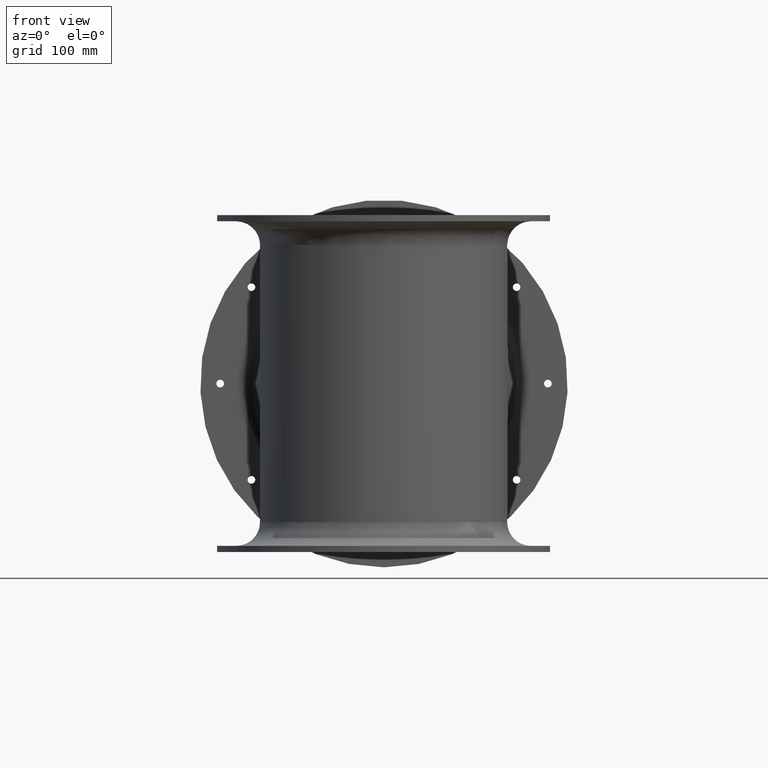
[diagram: clean part render]
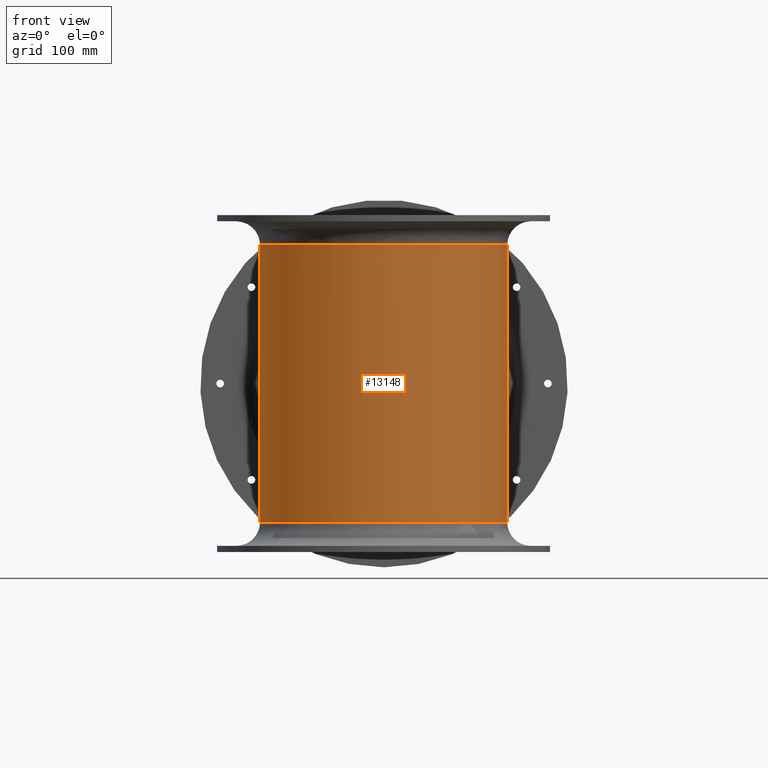
[diagram: same view with one face highlighted and labeled with its STEP entity id]
A machine part, front view. The second image highlights one B-rep face of the part: STEP entity #13148.
In plain terms, the highlighted cylindrical surface (bore or boss wall) has radius 202.5 mm, axis along (-0, 0, -1).
Its self-contained STEP definition (entity closure, byte-faithful):
#752=CYLINDRICAL_SURFACE('',#14254,202.5);
#822=FACE_BOUND('',#3325,.T.);
#823=FACE_BOUND('',#3326,.T.);
#1643=B_SPLINE_CURVE_WITH_KNOTS('',3,(#54948,#54949,#54950,#54951,#54952,
#54953,#54954,#54955,#54956,#54957,#54958,#54959,#54960,#54961,#54962,#54963,
#54964,#54965,#54966,#54967,#54968,#54969,#54970,#54971,#54972,#54973,#54974,
#54975,#54976,#54977,#54978,#54979,#54980,#54981,#54982,#54983,#54984,#54985,
#54986,#54987,#54988,#54989,#54990,#54991,#54992,#54993,#54994,#54995,#54996,
#54997,#54998,#54999,#55000,#55001,#55002,#55003,#55004,#55005,#55006,#55007,
#55008,#55009,#55010,#55011,#55012,#55013,#55014,#55015,#55016,#55017,#55018,
#55019,#55020,#55021,#55022,#55023,#55024,#55025,#55026,#55027,#55028,#55029,
#55030,#55031,#55032,#55033,#55034,#55035,#55036,#55037,#55038,#55039,#55040,
#55041,#55042,#55043,#55044,#55045,#55046,#55047,#55048,#55049,#55050,#55051,
#55052,#55053,#55054,#55055,#55056,#55057,#55058,#55059,#55060,#55061,#55062,
#55063,#55064,#55065,#55066,#55067,#55068,#55069,#55070,#55071,#55072,#55073,
#55074,#55075,#55076,#55077,#55078,#55079,#55080,#55081,#55082,#55083,#55084,
#55085,#55086,#55087,#55088,#55089,#55090,#55091,#55092,#55093,#55094,#55095,
#55096,#55097,#55098,#55099,#55100,#55101,#55102,#55103,#55104,#55105,#55106,
#55107,#55108,#55109,#55110,#55111,#55112,#55113,#55114,#55115,#55116,#55117,
#55118,#55119,#55120,#55121,#55122,#55123,#55124,#55125,#55126,#55127,#55128,
#55129,#55130,#55131,#55132,#55133,#55134,#55135,#55136,#55137,#55138,#55139,
#55140,#55141,#55142,#55143,#55144,#55145,#55146,#55147,#55148,#55149,#55150,
#55151,#55152,#55153,#55154,#55155,#55156,#55157,#55158,#55159,#55160,#55161,
#55162,#55163,#55164,#55165,#55166,#55167,#55168,#55169,#55170,#55171,#55172,
#55173,#55174,#55175,#55176,#55177,#55178,#55179,#55180,#55181,#55182,#55183,
#55184,#55185,#55186,#55187,#55188,#55189,#55190,#55191,#55192,#55193,#55194,
#55195,#55196,#55197,#55198,#55199,#55200,#55201,#55202,#55203,#55204,#55205,
#55206,#55207,#55208,#55209,#55210,#55211,#55212,#55213,#55214,#55215,#55216,
#55217,#55218,#55219,#55220,#55221,#55222,#55223,#55224,#55225,#55226,#55227,
#55228,#55229,#55230,#55231,#55232,#55233,#55234,#55235,#55236,#55237,#55238,
#55239,#55240,#55241,#55242,#55243,#55244,#55245,#55246,#55247,#55248,#55249,
#55250,#55251,#55252,#55253,#55254,#55255,#55256,#55257,#55258,#55259,#55260,
#55261,#55262,#55263,#55264,#55265,#55266,#55267,#55268,#55269,#55270,#55271,
#55272,#55273,#55274,#55275,#55276,#55277,#55278,#55279,#55280,#55281,#55282,
#55283,#55284,#55285,#55286,#55287,#55288,#55289,#55290,#55291,#55292,#55293,
#55294,#55295,#55296,#55297,#55298,#55299,#55300,#55301,#55302,#55303,#55304,
#55305,#55306,#55307,#55308,#55309,#55310,#55311,#55312,#55313,#55314,#55315,
#55316,#55317,#55318,#55319,#55320,#55321,#55322,#55323,#55324,#55325,#55326,
#55327,#55328,#55329,#55330,#55331,#55332),.UNSPECIFIED.,.T.,.F.,(4,3,3,
3,3,3,3,3,3,3,3,3,3,3,3,3,3,3,3,3,3,3,3,3,3,3,3,3,3,3,3,3,3,3,3,3,3,3,3,
3,3,3,3,3,3,3,3,3,3,3,3,3,3,3,3,3,3,3,3,3,3,3,3,3,3,3,3,3,3,3,3,3,3,3,3,
3,3,3,3,3,3,3,3,3,3,3,3,3,3,3,3,3,3,3,3,3,3,3,3,3,3,3,3,3,3,3,3,3,3,3,3,
3,3,3,3,3,3,3,3,3,3,3,3,3,3,3,3,3,4),(-160.342906912036,-160.081610975274,
-159.806046325259,-159.70745696218,-159.627059865564,-158.911603294999,
-158.196065782003,-157.71663035812,-157.65844358391,-157.479094196927,-156.045520752024,
-154.613641021606,-151.752290572736,-149.810930225153,-148.890155718497,
-147.45892251172,-145.816008437067,-145.668549316929,-144.594002031974,
-143.161990087913,-137.436836950914,-136.959595278468,-136.665929451944,
-136.1641162625,-134.891639086557,-130.162442041686,-129.800813206733,-129.562154742946,
-127.892585473663,-126.461189080719,-126.039837570184,-125.983600632645,
-122.695283499125,-122.165629504571,-120.625039987267,-118.692210297802,
-118.34832113825,-116.439800674157,-116.069722114912,-114.530009733055,
-112.622185500934,-110.713585221901,-110.068461128252,-108.803075963811,
-106.894432287388,-103.077776392632,-102.68580357898,-101.884102439985,
-101.168158906038,-99.2597980532162,-95.4440953012599,-93.5352335895442,
-91.6495833604302,-91.6246814189812,-87.805743866731,-85.897824174083,-84.5253022285759,
-83.9893061310752,-83.7009996830874,-82.7160553985728,-82.2390318148518,
-81.7454708848339,-81.4439640252966,-81.025646101809,-80.8076057675436,
-80.531767047028,-80.287961013862,-80.1716033146539,-80.0854849546987,-79.8375311491397,
-79.5349982732622,-79.3190264793224,-78.8993080078128,-78.0180719655853,
-77.6264146846165,-76.3537563673086,-76.2634474649733,-75.636812081051,
-75.3979507631704,-74.4430331145185,-72.5348999443966,-69.6731482481115,
-68.9386351468239,-68.7183700297651,-64.9011242767384,-61.0844988520505,
-58.7703045195937,-57.2641197006221,-54.4022140550659,-53.4482350096057,
-51.6487655418366,-50.9021158366082,-48.3580124577464,-46.7305625843402,
-45.8116971581924,-43.9036909448839,-42.9208168368777,-41.9944043869412,
-40.7550662017537,-38.8470287143703,-38.1767120407175,-37.2227430335197,
-36.4198872014549,-34.3586547744628,-32.4507825263865,-31.5152553461049,
-30.5409726766878,-25.4522695863814,-24.2770105557074,-24.1785704467151,
-22.9049318856175,-17.1807867851427,-15.7491697433524,-14.2375590226819,
-11.4519378130212,-8.58974760449831,-7.63804363807765,-5.72603196125493,
-4.29487985096732,-3.23889387569538,-2.86323948060928,-2.77950123683371,
-1.47209831865792,-1.43167218082337,-1.27598788093155,-0.715991356617883,
-0.534179025333353,-0.212204773589796,0.),.UNSPECIFIED.);
#2444=FACE_OUTER_BOUND('',#3324,.T.);
#3324=EDGE_LOOP('',(#11356));
#3325=EDGE_LOOP('',(#11357));
#3326=EDGE_LOOP('',(#11358));
#4763=CIRCLE('',#14255,202.5);
#4764=CIRCLE('',#14256,202.5);
#5865=VERTEX_POINT('',#54858);
#5868=VERTEX_POINT('',#55337);
#5869=VERTEX_POINT('',#55339);
#7716=EDGE_CURVE('',#5865,#5865,#1643,.T.);
#7718=EDGE_CURVE('',#5868,#5868,#4763,.T.);
#7719=EDGE_CURVE('',#5869,#5869,#4764,.T.);
#11356=ORIENTED_EDGE('',*,*,#7718,.F.);
#11357=ORIENTED_EDGE('',*,*,#7719,.T.);
#11358=ORIENTED_EDGE('',*,*,#7716,.F.);
#13148=ADVANCED_FACE('',(#2444,#822,#823),#752,.T.);
#14254=AXIS2_PLACEMENT_3D('',#55336,#16807,#16808);
#14255=AXIS2_PLACEMENT_3D('',#55338,#16809,#16810);
#14256=AXIS2_PLACEMENT_3D('',#55340,#16811,#16812);
#16807=DIRECTION('center_axis',(-3.12250225675821E-16,2.4995738599939E-16,
-1.));
#16808=DIRECTION('ref_axis',(-1.,-4.17516537684347E-17,3.12250225675821E-16));
#16809=DIRECTION('center_axis',(-3.12250225675821E-16,2.4995738599939E-16,
-1.));
#16810=DIRECTION('ref_axis',(-1.,-4.17516537684347E-17,3.12250225675821E-16));
#16811=DIRECTION('center_axis',(-3.12250225675821E-16,2.4995738599939E-16,
-1.));
#16812=DIRECTION('ref_axis',(-1.,-4.17516537684347E-17,3.12250225675821E-16));
#54858=CARTESIAN_POINT('',(206.153196348046,-87.0686473666675,-0.0114437788855521));
#54948=CARTESIAN_POINT('Ctrl Pts',(206.153196348016,-87.0686473660619,-0.0114437792734989));
#54949=CARTESIAN_POINT('Ctrl Pts',(206.153196348004,-87.068647365811,-0.905316120626415));
#54950=CARTESIAN_POINT('Ctrl Pts',(206.150641521748,-87.0161968848526,-1.80011812933818));
#54951=CARTESIAN_POINT('Ctrl Pts',(206.145550425563,-86.9140453044336,-2.68735471217343));
#54952=CARTESIAN_POINT('Ctrl Pts',(206.140181317432,-86.8063154833905,-3.62304105103956));
#54953=CARTESIAN_POINT('Ctrl Pts',(206.132034910705,-86.6442851690262,-4.55357712066154));
#54954=CARTESIAN_POINT('Ctrl Pts',(206.12106942661,-86.4342871383792,-5.47058941575714));
#54955=CARTESIAN_POINT('Ctrl Pts',(206.11714628156,-86.3591556870553,-5.79867089537995));
#54956=CARTESIAN_POINT('Ctrl Pts',(206.112860928876,-86.2778919594474,-6.12502436562616));
#54957=CARTESIAN_POINT('Ctrl Pts',(206.108228444408,-86.1911780894009,-6.44943962786619));
#54958=CARTESIAN_POINT('Ctrl Pts',(206.104450772154,-86.120465152727,-6.713991952454));
#54959=CARTESIAN_POINT('Ctrl Pts',(206.10043905172,-86.0460680239785,-6.97736107391751));
#54960=CARTESIAN_POINT('Ctrl Pts',(206.096200084156,-85.9683286718561,-7.23946241622428));
#54961=CARTESIAN_POINT('Ctrl Pts',(206.058477363766,-85.2765234623592,-9.5719114150066));
#54962=CARTESIAN_POINT('Ctrl Pts',(206.002582524451,-84.3198266200034,-11.8038612803584));
#54963=CARTESIAN_POINT('Ctrl Pts',(205.92748539864,-83.2184482316315,-13.9711063214506));
#54964=CARTESIAN_POINT('Ctrl Pts',(205.852379776795,-82.1169452399681,-16.1385965515427));
#54965=CARTESIAN_POINT('Ctrl Pts',(205.757974345024,-80.8708699787625,-18.2413977841035));
#54966=CARTESIAN_POINT('Ctrl Pts',(205.644928684035,-79.5624942379679,-20.2819700481717));
#54967=CARTESIAN_POINT('Ctrl Pts',(205.569184095652,-78.6858362480043,-21.6492255877058));
#54968=CARTESIAN_POINT('Ctrl Pts',(205.485217206077,-77.7812057130045,-22.9885593503663));
#54969=CARTESIAN_POINT('Ctrl Pts',(205.393228880498,-76.8605740822932,-24.3019416808103));
#54970=CARTESIAN_POINT('Ctrl Pts',(205.38206469933,-76.7488414439486,-24.4613405848239));
#54971=CARTESIAN_POINT('Ctrl Pts',(205.370780832487,-76.6368504828469,-24.6203856403321));
#54972=CARTESIAN_POINT('Ctrl Pts',(205.359378005152,-76.5246213179947,-24.779080966894));
#54973=CARTESIAN_POINT('Ctrl Pts',(205.324231013068,-76.1786967983524,-25.2682283706251));
#54974=CARTESIAN_POINT('Ctrl Pts',(205.287954146403,-75.8305092529739,-25.7540529681158));
#54975=CARTESIAN_POINT('Ctrl Pts',(205.250500103504,-75.4799674555695,-26.2381044776288));
#54976=CARTESIAN_POINT('Ctrl Pts',(204.951122881163,-72.6780208164489,-30.1072194028214));
#54977=CARTESIAN_POINT('Ctrl Pts',(204.575325772107,-69.7256786758896,-33.8630043060055));
#54978=CARTESIAN_POINT('Ctrl Pts',(204.120236801677,-66.716211780728,-37.5593616210022));
#54979=CARTESIAN_POINT('Ctrl Pts',(203.665685502186,-63.7103004604064,-41.2513518253022));
#54980=CARTESIAN_POINT('Ctrl Pts',(203.132877729053,-60.6473455439024,-44.8840835034092));
#54981=CARTESIAN_POINT('Ctrl Pts',(202.519418616028,-57.5576238800317,-48.4859196926945));
#54982=CARTESIAN_POINT('Ctrl Pts',(201.293532481092,-51.3833787377965,-55.6835322980198));
#54983=CARTESIAN_POINT('Ctrl Pts',(199.744665032937,-45.1023736273486,-62.7577588627047));
#54984=CARTESIAN_POINT('Ctrl Pts',(197.862110861805,-38.824954086243,-69.7467996741985));
#54985=CARTESIAN_POINT('Ctrl Pts',(196.584841234991,-34.5658695735234,-74.4887028215157));
#54986=CARTESIAN_POINT('Ctrl Pts',(195.154892784623,-30.3081899753721,-79.19141384502));
#54987=CARTESIAN_POINT('Ctrl Pts',(193.570195413365,-26.0701797009413,-83.846923820961));
#54988=CARTESIAN_POINT('Ctrl Pts',(192.81858382202,-24.0601191655519,-86.0550017322414));
#54989=CARTESIAN_POINT('Ctrl Pts',(192.031853734637,-22.0535686519736,-88.2536130032019));
#54990=CARTESIAN_POINT('Ctrl Pts',(191.209910066484,-20.0525498442842,-90.4417313203539));
#54991=CARTESIAN_POINT('Ctrl Pts',(189.932297509386,-16.9422068186639,-93.8428980264504));
#54992=CARTESIAN_POINT('Ctrl Pts',(188.56950243704,-13.8452698022533,-97.2187101162836));
#54993=CARTESIAN_POINT('Ctrl Pts',(187.12388414568,-10.773190348761,-100.560695656225));
#54994=CARTESIAN_POINT('Ctrl Pts',(185.464457417592,-7.24674717465236,-104.396964305428));
#54995=CARTESIAN_POINT('Ctrl Pts',(183.696220778413,-3.75289957296477,-108.188663863943));
#54996=CARTESIAN_POINT('Ctrl Pts',(181.813753566408,-0.289525822577126,
-111.939837415986));
#54997=CARTESIAN_POINT('Ctrl Pts',(181.644793446671,0.0213279547581458,
-112.276522553697));
#54998=CARTESIAN_POINT('Ctrl Pts',(181.474893048155,0.331970037897555,-112.61292210773));
#54999=CARTESIAN_POINT('Ctrl Pts',(181.304046644655,0.642402121147132,-112.949040054855));
#55000=CARTESIAN_POINT('Ctrl Pts',(180.059074215324,2.90454739846474,-115.398360430349));
#55001=CARTESIAN_POINT('Ctrl Pts',(178.763916391559,5.15556659020527,-117.832725912591));
#55002=CARTESIAN_POINT('Ctrl Pts',(177.415508715764,7.39689776956975,-120.254292268482));
#55003=CARTESIAN_POINT('Ctrl Pts',(175.618532515427,10.3838421920106,-123.481429867287));
#55004=CARTESIAN_POINT('Ctrl Pts',(173.726825398722,13.3534889365441,-126.685838813271));
#55005=CARTESIAN_POINT('Ctrl Pts',(171.740901713367,16.2957363428828,-129.857650268493));
#55006=CARTESIAN_POINT('Ctrl Pts',(163.801221276895,28.0587785703541,-142.53848465549));
#55007=CARTESIAN_POINT('Ctrl Pts',(154.354021009535,39.3834051224526,-154.697622047659));
#55008=CARTESIAN_POINT('Ctrl Pts',(143.359397447823,49.8270231142423,-165.897138230604));
#55009=CARTESIAN_POINT('Ctrl Pts',(142.442899249269,50.6975901711438,-166.830716024217));
#55010=CARTESIAN_POINT('Ctrl Pts',(141.515657184101,51.5620368507283,-167.757631716881));
#55011=CARTESIAN_POINT('Ctrl Pts',(140.577775858483,52.4199944001655,-168.677409279932));
#55012=CARTESIAN_POINT('Ctrl Pts',(140.000660089741,52.9479298832235,-169.243385081851));
#55013=CARTESIAN_POINT('Ctrl Pts',(139.419516752431,53.4734094985527,-169.806658111091));
#55014=CARTESIAN_POINT('Ctrl Pts',(138.834122042062,53.9965666753642,-170.367380414359));
#55015=CARTESIAN_POINT('Ctrl Pts',(137.833805491204,54.8905323593636,-171.3255370059));
#55016=CARTESIAN_POINT('Ctrl Pts',(136.820904945608,55.7778775651086,-172.276402108435));
#55017=CARTESIAN_POINT('Ctrl Pts',(135.794236244161,56.6591825928534,-173.220723179792));
#55018=CARTESIAN_POINT('Ctrl Pts',(133.190852121686,58.8939595107201,-175.615293580375));
#55019=CARTESIAN_POINT('Ctrl Pts',(130.498826304209,61.0897423349381,-177.967784282664));
#55020=CARTESIAN_POINT('Ctrl Pts',(127.723251138706,63.2347416615136,-180.264945430994));
#55021=CARTESIAN_POINT('Ctrl Pts',(117.407748339384,71.20669170374,-188.802409143239));
#55022=CARTESIAN_POINT('Ctrl Pts',(105.934004911645,78.4722767244183,-196.574523778074));
#55023=CARTESIAN_POINT('Ctrl Pts',(93.4496549177915,84.6279896735846,-203.156634313988));
#55024=CARTESIAN_POINT('Ctrl Pts',(92.4950106302756,85.0987002997207,-203.659950403813));
#55025=CARTESIAN_POINT('Ctrl Pts',(91.5341359029034,85.5631259870001,-204.156487976119));
#55026=CARTESIAN_POINT('Ctrl Pts',(90.5671284798368,86.0210725915283,-204.646026797903));
#55027=CARTESIAN_POINT('Ctrl Pts',(89.9289478820725,86.3232963706335,-204.969099993064));
#55028=CARTESIAN_POINT('Ctrl Pts',(89.2880970473115,86.6227001000465,-205.289124961684));
#55029=CARTESIAN_POINT('Ctrl Pts',(88.6441017736712,86.9194540674916,-205.606320194511));
#55030=CARTESIAN_POINT('Ctrl Pts',(84.1389411295667,88.9954387056375,-207.825304615549));
#55031=CARTESIAN_POINT('Ctrl Pts',(79.4794599148953,90.9407880353013,-209.905720257906));
#55032=CARTESIAN_POINT('Ctrl Pts',(74.7065649851968,92.7222322453168,-211.809608571909));
#55033=CARTESIAN_POINT('Ctrl Pts',(70.6145487316833,94.2495440276802,-213.441897159973));
#55034=CARTESIAN_POINT('Ctrl Pts',(66.4392673986459,95.6568860152092,-214.944435612847));
#55035=CARTESIAN_POINT('Ctrl Pts',(62.1943219458807,96.9329896029342,-216.30840125423));
#55036=CARTESIAN_POINT('Ctrl Pts',(60.9447629924859,97.3086285083676,-216.70990358171));
#55037=CARTESIAN_POINT('Ctrl Pts',(59.6891818205151,97.6729123263901,-217.099404062175));
#55038=CARTESIAN_POINT('Ctrl Pts',(58.4272659404547,98.0257647266432,-217.4765007527));
#55039=CARTESIAN_POINT('Ctrl Pts',(58.2588405693527,98.0728592258851,-217.526831088538));
#55040=CARTESIAN_POINT('Ctrl Pts',(58.090284840386,98.1197549307321,-217.576946782485));
#55041=CARTESIAN_POINT('Ctrl Pts',(57.9215980579332,98.1664514488618,-217.626846675502));
#55042=CARTESIAN_POINT('Ctrl Pts',(48.0580517623197,100.896915932915,-220.54462065734));
#55043=CARTESIAN_POINT('Ctrl Pts',(37.7417989788662,102.93489748153,-222.720783290649));
#55044=CARTESIAN_POINT('Ctrl Pts',(27.2881315967816,104.150578786694,-224.020055035181));
#55045=CARTESIAN_POINT('Ctrl Pts',(25.6043442788795,104.346390332005,-224.229330613405));
#55046=CARTESIAN_POINT('Ctrl Pts',(23.9145908683526,104.521456949889,-224.416600618623));
#55047=CARTESIAN_POINT('Ctrl Pts',(22.2204635966756,104.675387193813,-224.581127189446));
#55048=CARTESIAN_POINT('Ctrl Pts',(17.2928037610852,105.123119718489,-225.059680948946));
#55049=CARTESIAN_POINT('Ctrl Pts',(12.3279240131953,105.391402658754,-225.345465848936));
#55050=CARTESIAN_POINT('Ctrl Pts',(7.36558214520845,105.47642447133,-225.435458799575));
#55051=CARTESIAN_POINT('Ctrl Pts',(1.13980845014759,105.583093172988,-225.548364310669));
#55052=CARTESIAN_POINT('Ctrl Pts',(-5.10902210767061,105.401083008606,-225.355538617146));
#55053=CARTESIAN_POINT('Ctrl Pts',(-11.3014733645517,104.935012040741,-224.857999133888));
#55054=CARTESIAN_POINT('Ctrl Pts',(-12.4032346164116,104.852088669736,-224.769476882976));
#55055=CARTESIAN_POINT('Ctrl Pts',(-13.5041361607491,104.760160321714,-224.671345841264));
#55056=CARTESIAN_POINT('Ctrl Pts',(-14.6037983327197,104.659273405854,-224.563589081918));
#55057=CARTESIAN_POINT('Ctrl Pts',(-20.7067175451989,104.099369907506,-223.965559238161));
#55058=CARTESIAN_POINT('Ctrl Pts',(-26.7714053692507,103.261944987581,-223.070458142706));
#55059=CARTESIAN_POINT('Ctrl Pts',(-32.7265121647376,102.166877713755,-221.900951880246));
#55060=CARTESIAN_POINT('Ctrl Pts',(-33.8812586736129,101.954534735726,-221.674174541054));
#55061=CARTESIAN_POINT('Ctrl Pts',(-35.0318929705042,101.732564857561,-221.43710109791));
#55062=CARTESIAN_POINT('Ctrl Pts',(-36.1782096655496,101.501131326167,-221.189876559164));
#55063=CARTESIAN_POINT('Ctrl Pts',(-40.9474619358984,100.538251783535,-220.161298507568));
#55064=CARTESIAN_POINT('Ctrl Pts',(-45.6555027603739,99.4088363593695,-218.954818712613));
#55065=CARTESIAN_POINT('Ctrl Pts',(-50.2942288005858,98.1204825768415,-217.577991722429));
#55066=CARTESIAN_POINT('Ctrl Pts',(-56.0419736716247,96.5241113358121,-215.871995247851));
#55067=CARTESIAN_POINT('Ctrl Pts',(-61.6828746770672,94.6823113414487,-213.904421632676));
#55068=CARTESIAN_POINT('Ctrl Pts',(-67.156652410013,92.6312667838919,-211.712422687221));
#55069=CARTESIAN_POINT('Ctrl Pts',(-72.632656715111,90.5793879215976,-209.519532100919));
#55070=CARTESIAN_POINT('Ctrl Pts',(-77.9417120499574,88.3187664271895,-207.102074964479));
#55071=CARTESIAN_POINT('Ctrl Pts',(-83.0525478463497,85.88888880302,-204.50430052903));
#55072=CARTESIAN_POINT('Ctrl Pts',(-84.7800564017839,85.067568269229,-203.626229360026));
#55073=CARTESIAN_POINT('Ctrl Pts',(-86.4849590332371,84.2269991913814,-202.72756460526));
#55074=CARTESIAN_POINT('Ctrl Pts',(-88.1682493642743,83.3677708112802,-201.808775209416));
#55075=CARTESIAN_POINT('Ctrl Pts',(-91.4699561727967,81.6824286333163,-200.006606475999));
#55076=CARTESIAN_POINT('Ctrl Pts',(-94.6932741466642,79.9230080960321,-198.124522187547));
#55077=CARTESIAN_POINT('Ctrl Pts',(-97.8449094519738,78.0916050128608,-196.165213216635));
#55078=CARTESIAN_POINT('Ctrl Pts',(-102.598678474174,75.3292082249855,-193.209889586662));
#55079=CARTESIAN_POINT('Ctrl Pts',(-107.188890583494,72.4023499771213,-190.07883657693));
#55080=CARTESIAN_POINT('Ctrl Pts',(-111.597557972564,69.3412082003325,-186.802427475486));
#55081=CARTESIAN_POINT('Ctrl Pts',(-120.413434181604,63.2199373987737,-180.250693243931));
#55082=CARTESIAN_POINT('Ctrl Pts',(-128.502194773675,56.5603073022296,-173.117459789364));
#55083=CARTESIAN_POINT('Ctrl Pts',(-135.815331781768,49.5900158951586,-165.643392092239));
#55084=CARTESIAN_POINT('Ctrl Pts',(-136.566395269996,48.8741628525637,-164.875800927238));
#55085=CARTESIAN_POINT('Ctrl Pts',(-137.309310757601,48.1550626187712,-164.104618556805));
#55086=CARTESIAN_POINT('Ctrl Pts',(-138.044425130661,47.4325989402885,-163.329710314067));
#55087=CARTESIAN_POINT('Ctrl Pts',(-139.547952951085,45.9549455578336,-161.744792178972));
#55088=CARTESIAN_POINT('Ctrl Pts',(-141.01964927148,44.4624736702575,-160.143468775332));
#55089=CARTESIAN_POINT('Ctrl Pts',(-142.462185748542,42.9538541453217,-158.524483054528));
#55090=CARTESIAN_POINT('Ctrl Pts',(-143.750414756836,41.606610962634,-157.078679497587));
#55091=CARTESIAN_POINT('Ctrl Pts',(-145.015360832892,40.246472256896,-155.618789924271));
#55092=CARTESIAN_POINT('Ctrl Pts',(-146.25688034475,38.8744195026471,-154.145636761754));
#55093=CARTESIAN_POINT('Ctrl Pts',(-149.566173776568,35.2171872768337,-150.218919510664));
#55094=CARTESIAN_POINT('Ctrl Pts',(-152.709030251991,31.4752162493565,-146.197951120547));
#55095=CARTESIAN_POINT('Ctrl Pts',(-155.684984304516,27.6655777423313,-142.100393384178));
#55096=CARTESIAN_POINT('Ctrl Pts',(-161.635303423212,20.0483348536391,-133.907465768919));
#55097=CARTESIAN_POINT('Ctrl Pts',(-166.918370934067,12.1612542321814,-125.408263712371));
#55098=CARTESIAN_POINT('Ctrl Pts',(-171.557530486077,4.11057258889066,-116.701814661874));
#55099=CARTESIAN_POINT('Ctrl Pts',(-173.878338635724,0.0831000782995694,
-112.346284811185));
#55100=CARTESIAN_POINT('Ctrl Pts',(-176.037784082481,-3.98554986077301,
-107.938917950414));
#55101=CARTESIAN_POINT('Ctrl Pts',(-178.034250510604,-8.07016168813684,
-103.500955943828));
#55102=CARTESIAN_POINT('Ctrl Pts',(-180.006440195433,-12.1051052258682,
-99.1169589139987));
#55103=CARTESIAN_POINT('Ctrl Pts',(-181.820192515385,-16.1552928205038,
-94.7030958647793));
#55104=CARTESIAN_POINT('Ctrl Pts',(-183.4874944263,-20.2249867979371,-90.2525825581724));
#55105=CARTESIAN_POINT('Ctrl Pts',(-183.509512854704,-20.2787312726952,
-90.1938089743614));
#55106=CARTESIAN_POINT('Ctrl Pts',(-183.531505989108,-20.3324799187387,
-90.1350276767081));
#55107=CARTESIAN_POINT('Ctrl Pts',(-183.553473851448,-20.3862327507735,
-90.0762386541135));
#55108=CARTESIAN_POINT('Ctrl Pts',(-186.922443881523,-28.6297148591217,
-81.060411253393));
#55109=CARTESIAN_POINT('Ctrl Pts',(-189.695856509685,-36.972928162411,-71.8638382348839));
#55110=CARTESIAN_POINT('Ctrl Pts',(-191.895892218767,-45.3067329130642,
-62.4783531191732));
#55111=CARTESIAN_POINT('Ctrl Pts',(-192.995017668309,-49.4702548300658,
-57.7894176149076));
#55112=CARTESIAN_POINT('Ctrl Pts',(-193.950645260996,-53.6313679159758,
-53.0531578459163));
#55113=CARTESIAN_POINT('Ctrl Pts',(-194.763294806979,-57.7445869046285,
-48.2606632281974));
#55114=CARTESIAN_POINT('Ctrl Pts',(-195.3478997776,-60.7035601519601,-44.8130317257337));
#55115=CARTESIAN_POINT('Ctrl Pts',(-195.858558959156,-63.6377327798279,
-41.3362813162109));
#55116=CARTESIAN_POINT('Ctrl Pts',(-196.29719755664,-66.5192356327443,-37.8007328325626));
#55117=CARTESIAN_POINT('Ctrl Pts',(-196.468494326963,-67.6445176649595,
-36.420033459439));
#55118=CARTESIAN_POINT('Ctrl Pts',(-196.628714011227,-68.7608507859536,
-35.0303573110519));
#55119=CARTESIAN_POINT('Ctrl Pts',(-196.778190560398,-69.86660866803,-33.6302145701224));
#55120=CARTESIAN_POINT('Ctrl Pts',(-196.858592363974,-70.4613837583758,
-32.8770930787615));
#55121=CARTESIAN_POINT('Ctrl Pts',(-196.935884818793,-71.0530996781478,
-32.1209434958909));
#55122=CARTESIAN_POINT('Ctrl Pts',(-197.010025355434,-71.6406111048838,
-31.3610467132896));
#55123=CARTESIAN_POINT('Ctrl Pts',(-197.263312433559,-73.6477324366795,
-28.765003516657));
#55124=CARTESIAN_POINT('Ctrl Pts',(-197.480127860061,-75.6113210726168,
-26.119951137192));
#55125=CARTESIAN_POINT('Ctrl Pts',(-197.661402424705,-77.484092512947,-23.398194049971));
#55126=CARTESIAN_POINT('Ctrl Pts',(-197.749196469327,-78.3911043693557,
-22.0800054578069));
#55127=CARTESIAN_POINT('Ctrl Pts',(-197.82869716437,-79.27679879059,-20.7438089219926));
#55128=CARTESIAN_POINT('Ctrl Pts',(-197.899876081081,-80.1284628814877,
-19.3846051825097));
#55129=CARTESIAN_POINT('Ctrl Pts',(-197.973522612465,-81.0096522715119,
-17.9782808735313));
#55130=CARTESIAN_POINT('Ctrl Pts',(-198.038231478147,-81.8544056199079,
-16.547324902129));
#55131=CARTESIAN_POINT('Ctrl Pts',(-198.094039676047,-82.6397362077625,
-15.0803638926619));
#55132=CARTESIAN_POINT('Ctrl Pts',(-198.128131828529,-83.119479527871,-14.1842256853447));
#55133=CARTESIAN_POINT('Ctrl Pts',(-198.158915601265,-83.5769519436689,
-13.2738919816953));
#55134=CARTESIAN_POINT('Ctrl Pts',(-198.186531911116,-84.006666798647,-12.3473414775646));
#55135=CARTESIAN_POINT('Ctrl Pts',(-198.224847448643,-84.6028636019373,
-11.0618228545748));
#55136=CARTESIAN_POINT('Ctrl Pts',(-198.25701913468,-85.1455771479571,-9.74507336784242));
#55137=CARTESIAN_POINT('Ctrl Pts',(-198.282686737191,-85.601081215373,-8.39851614205274));
#55138=CARTESIAN_POINT('Ctrl Pts',(-198.296065491284,-85.8385041263748,
-7.69664856446775));
#55139=CARTESIAN_POINT('Ctrl Pts',(-198.307758115619,-86.053477680836,-6.98501748079165));
#55140=CARTESIAN_POINT('Ctrl Pts',(-198.31769454106,-86.2403266927056,-6.26442816533154));
#55141=CARTESIAN_POINT('Ctrl Pts',(-198.330264925752,-86.4767058586858,
-5.35282419323419));
#55142=CARTESIAN_POINT('Ctrl Pts',(-198.34003316877,-86.6680254520402,-4.42686925982335));
#55143=CARTESIAN_POINT('Ctrl Pts',(-198.347014547257,-86.8066242957591,
-3.49487985496821));
#55144=CARTESIAN_POINT('Ctrl Pts',(-198.353185189986,-86.9291278885299,
-2.67112081444736));
#55145=CARTESIAN_POINT('Ctrl Pts',(-198.357227909358,-87.0113863269801,
-1.83910648994165));
#55146=CARTESIAN_POINT('Ctrl Pts',(-198.358990600407,-87.0472290246013,
-1.00593840286615));
#55147=CARTESIAN_POINT('Ctrl Pts',(-198.359831853891,-87.0643351387301,
-0.60830459369903));
#55148=CARTESIAN_POINT('Ctrl Pts',(-198.3601767153,-87.0713763575531,-0.209923895437445));
#55149=CARTESIAN_POINT('Ctrl Pts',(-198.36000710648,-87.0679203118482,0.188332300104638));
#55150=CARTESIAN_POINT('Ctrl Pts',(-198.359881576038,-87.0653624322231,
0.483088647432544));
#55151=CARTESIAN_POINT('Ctrl Pts',(-198.359474137471,-87.0570566289546,
0.777776981117359));
#55152=CARTESIAN_POINT('Ctrl Pts',(-198.358797096127,-87.0432950732886,
1.07201752730837));
#55153=CARTESIAN_POINT('Ctrl Pts',(-198.356847744355,-87.0036725108108,
1.9192011385133));
#55154=CARTESIAN_POINT('Ctrl Pts',(-198.352539353237,-86.9160756171496,
2.76500489323632));
#55155=CARTESIAN_POINT('Ctrl Pts',(-198.346023612841,-86.7869706309976,
3.60200716776897));
#55156=CARTESIAN_POINT('Ctrl Pts',(-198.338073641369,-86.6294473267571,
4.62324862304476));
#55157=CARTESIAN_POINT('Ctrl Pts',(-198.326766986786,-86.4087720047343,
5.6374671250344));
#55158=CARTESIAN_POINT('Ctrl Pts',(-198.312097158618,-86.1355825799116,
6.63306779531523));
#55159=CARTESIAN_POINT('Ctrl Pts',(-198.301624679893,-85.9405584523908,
7.34380596611603));
#55160=CARTESIAN_POINT('Ctrl Pts',(-198.289432804982,-85.7188039221053,
8.04506474522083));
#55161=CARTESIAN_POINT('Ctrl Pts',(-198.275574884036,-85.4755660125906,
8.73711105033446));
#55162=CARTESIAN_POINT('Ctrl Pts',(-198.248643471874,-85.0028587125661,
10.0820302738011));
#55163=CARTESIAN_POINT('Ctrl Pts',(-198.215226862952,-84.4464406029461,
11.3903059933648));
#55164=CARTESIAN_POINT('Ctrl Pts',(-198.175774692516,-83.8403518763716,
12.6692034639807));
#55165=CARTESIAN_POINT('Ctrl Pts',(-198.092941372345,-82.5678150048726,
15.3543617830001));
#55166=CARTESIAN_POINT('Ctrl Pts',(-197.983295352398,-81.0760865011013,
17.9096777549361));
#55167=CARTESIAN_POINT('Ctrl Pts',(-197.843512843317,-79.4671305173825,
20.4060422882736));
#55168=CARTESIAN_POINT('Ctrl Pts',(-197.781387788495,-78.7520447791859,
21.5155286217676));
#55169=CARTESIAN_POINT('Ctrl Pts',(-197.713305924601,-78.0128206841276,
22.6116488469966));
#55170=CARTESIAN_POINT('Ctrl Pts',(-197.639426363856,-77.2583730441246,
23.6990660896651));
#55171=CARTESIAN_POINT('Ctrl Pts',(-197.399360770724,-74.806857112522,27.2325395255294));
#55172=CARTESIAN_POINT('Ctrl Pts',(-197.096734157797,-72.1944033434779,
30.6736147676202));
#55173=CARTESIAN_POINT('Ctrl Pts',(-196.736396709176,-69.5592110869512,
33.9987723187442));
#55174=CARTESIAN_POINT('Ctrl Pts',(-196.710826861392,-69.3722156327173,
34.2347282893691));
#55175=CARTESIAN_POINT('Ctrl Pts',(-196.684975091008,-69.185105960267,34.4701034583922));
#55176=CARTESIAN_POINT('Ctrl Pts',(-196.658838566938,-68.9978712272597,
34.7049556408873));
#55177=CARTESIAN_POINT('Ctrl Pts',(-196.477482461712,-67.698686919096,36.3345478930032));
#55178=CARTESIAN_POINT('Ctrl Pts',(-196.282111028944,-66.3910387515903,
37.9412785504326));
#55179=CARTESIAN_POINT('Ctrl Pts',(-196.071208464779,-65.0699680312478,
39.5445517629171));
#55180=CARTESIAN_POINT('Ctrl Pts',(-195.990816476529,-64.5664013617447,
40.1556885775345));
#55181=CARTESIAN_POINT('Ctrl Pts',(-195.908160848174,-64.0608855753312,
40.7663242493823));
#55182=CARTESIAN_POINT('Ctrl Pts',(-195.823318357699,-63.5541605245115,
41.3754087229712));
#55183=CARTESIAN_POINT('Ctrl Pts',(-195.484135805127,-61.5283796306645,
43.8104012052637));
#55184=CARTESIAN_POINT('Ctrl Pts',(-195.109965282918,-59.4832738934612,
46.2205932907151));
#55185=CARTESIAN_POINT('Ctrl Pts',(-194.70020431184,-57.4265937616743,48.6161834376291));
#55186=CARTESIAN_POINT('Ctrl Pts',(-193.88141276281,-53.3168995013015,53.4030936259553));
#55187=CARTESIAN_POINT('Ctrl Pts',(-192.920174838594,-49.1610354688144,
58.1316933827533));
#55188=CARTESIAN_POINT('Ctrl Pts',(-191.813873283923,-44.9970354906888,
62.8171151891504));
#55189=CARTESIAN_POINT('Ctrl Pts',(-190.154680728469,-38.7520132944809,
69.8441476899328));
#55190=CARTESIAN_POINT('Ctrl Pts',(-188.169093740011,-32.4887517015018,
76.7740228902407));
#55191=CARTESIAN_POINT('Ctrl Pts',(-185.855924597538,-26.2814971999253,
83.5924297464452));
#55192=CARTESIAN_POINT('Ctrl Pts',(-185.262213744551,-24.6883087481273,
85.3424799594993));
#55193=CARTESIAN_POINT('Ctrl Pts',(-184.647026926714,-23.0987727276808,
87.0851938622778));
#55194=CARTESIAN_POINT('Ctrl Pts',(-184.009592537539,-21.5119312595118,
88.8221853555353));
#55195=CARTESIAN_POINT('Ctrl Pts',(-183.818439295884,-21.0360706912969,
89.3430727759527));
#55196=CARTESIAN_POINT('Ctrl Pts',(-183.625255045225,-20.5603798495208,
89.8635247942363));
#55197=CARTESIAN_POINT('Ctrl Pts',(-183.43001370481,-20.0848323636931,90.3835866669784));
#55198=CARTESIAN_POINT('Ctrl Pts',(-180.046435826188,-11.8434837340155,
99.3963799841587));
#55199=CARTESIAN_POINT('Ctrl Pts',(-176.044021363598,-3.64572835670463,
108.291945443921));
#55200=CARTESIAN_POINT('Ctrl Pts',(-171.394396304849,4.39314508819177,116.984310278531));
#55201=CARTESIAN_POINT('Ctrl Pts',(-166.745526841725,12.4307121616016,125.675262544868));
#55202=CARTESIAN_POINT('Ctrl Pts',(-161.448948300763,20.3095487797571,134.162975795839));
#55203=CARTESIAN_POINT('Ctrl Pts',(-155.501704797649,27.8998463530613,142.327464142079));
#55204=CARTESIAN_POINT('Ctrl Pts',(-151.895619400948,32.5021904846543,147.277966367437));
#55205=CARTESIAN_POINT('Ctrl Pts',(-148.051303061599,36.9989851857266,152.109678286125));
#55206=CARTESIAN_POINT('Ctrl Pts',(-143.951893352877,41.3791140304632,156.811009975511));
#55207=CARTESIAN_POINT('Ctrl Pts',(-141.283807711397,44.229904682983,159.87085431105));
#55208=CARTESIAN_POINT('Ctrl Pts',(-138.5039576921,47.0350257426546,162.879409861768));
#55209=CARTESIAN_POINT('Ctrl Pts',(-135.606165402402,49.789091973655,165.832497014468));
#55210=CARTESIAN_POINT('Ctrl Pts',(-130.100062825165,55.0221002973727,171.44366550301));
#55211=CARTESIAN_POINT('Ctrl Pts',(-124.167216623361,60.0693116426993,176.854455536219));
#55212=CARTESIAN_POINT('Ctrl Pts',(-117.827795974973,64.8376176265724,181.958901948542));
#55213=CARTESIAN_POINT('Ctrl Pts',(-115.714632507019,66.4270704437959,183.66040280815));
#55214=CARTESIAN_POINT('Ctrl Pts',(-113.556307270881,67.9856229677564,185.327882672693));
#55215=CARTESIAN_POINT('Ctrl Pts',(-111.356205458391,69.5085311595238,186.957676589805));
#55216=CARTESIAN_POINT('Ctrl Pts',(-107.206202314824,72.3811590294356,190.031920627506));
#55217=CARTESIAN_POINT('Ctrl Pts',(-102.908030222624,75.127375842072,192.972038705811));
#55218=CARTESIAN_POINT('Ctrl Pts',(-98.4498859696639,77.73865455276,195.765467817507));
#55219=CARTESIAN_POINT('Ctrl Pts',(-96.6000784836469,78.8221463899521,196.924538899391));
#55220=CARTESIAN_POINT('Ctrl Pts',(-94.7210217095404,79.8833343403506,198.059431099319));
#55221=CARTESIAN_POINT('Ctrl Pts',(-92.8117184031975,80.921163883643,199.169052076064));
#55222=CARTESIAN_POINT('Ctrl Pts',(-86.3060371460769,84.4574214208574,202.949928779589));
#55223=CARTESIAN_POINT('Ctrl Pts',(-79.4474896336446,87.7198988016146,206.437042916856));
#55224=CARTESIAN_POINT('Ctrl Pts',(-72.3217933633611,90.6148022144554,209.532666286872));
#55225=CARTESIAN_POINT('Ctrl Pts',(-67.7635220331324,92.466657069056,211.512920667848));
#55226=CARTESIAN_POINT('Ctrl Pts',(-63.0964569014623,94.1691052069202,213.333058863074));
#55227=CARTESIAN_POINT('Ctrl Pts',(-58.3292720786482,95.708485137192,214.978068642861));
#55228=CARTESIAN_POINT('Ctrl Pts',(-55.6376983562747,96.5776258823211,215.906848470136));
#55229=CARTESIAN_POINT('Ctrl Pts',(-52.9098057518559,97.3962148915147,216.78132827857));
#55230=CARTESIAN_POINT('Ctrl Pts',(-50.1473778397315,98.1612092596662,217.598279155));
#55231=CARTESIAN_POINT('Ctrl Pts',(-44.4112499257158,99.7497052091745,219.29466178497));
#55232=CARTESIAN_POINT('Ctrl Pts',(-38.5257054443305,101.105590516703,220.742739883708));
#55233=CARTESIAN_POINT('Ctrl Pts',(-32.5591493908328,102.197580880156,221.910035506309));
#55234=CARTESIAN_POINT('Ctrl Pts',(-29.4855884044766,102.760099517121,222.511346254587));
#55235=CARTESIAN_POINT('Ctrl Pts',(-26.3906267425871,103.252949137588,223.038210890397));
#55236=CARTESIAN_POINT('Ctrl Pts',(-23.2806793286379,103.674141538987,223.488302105709));
#55237=CARTESIAN_POINT('Ctrl Pts',(-20.34938428336,104.071138347933,223.912537622828));
#55238=CARTESIAN_POINT('Ctrl Pts',(-17.397985700945,104.405371907129,224.270000477728));
#55239=CARTESIAN_POINT('Ctrl Pts',(-14.433812467216,104.67479627004,224.557661137569));
#55240=CARTESIAN_POINT('Ctrl Pts',(-10.4683939580811,105.035227416014,224.942488478935));
#55241=CARTESIAN_POINT('Ctrl Pts',(-6.48005304524421,105.279482291051,225.202311206067));
#55242=CARTESIAN_POINT('Ctrl Pts',(-2.49087931681324,105.405375415267,225.336101421023));
#55243=CARTESIAN_POINT('Ctrl Pts',(3.65069939713512,105.599195635833,225.542079699296));
#55244=CARTESIAN_POINT('Ctrl Pts',(9.82274949560568,105.512412819314,225.451107464958));
#55245=CARTESIAN_POINT('Ctrl Pts',(15.94864232946,105.147174448683,225.061488236092));
#55246=CARTESIAN_POINT('Ctrl Pts',(18.1007426601373,105.018861786426,224.924610283111));
#55247=CARTESIAN_POINT('Ctrl Pts',(20.2507170910411,104.85615901047,224.751220958577));
#55248=CARTESIAN_POINT('Ctrl Pts',(22.3953110578465,104.659423935324,224.541079968635));
#55249=CARTESIAN_POINT('Ctrl Pts',(25.4474150226891,104.379438114152,224.242015363165));
#55250=CARTESIAN_POINT('Ctrl Pts',(28.4886469144697,104.030464767781,223.868487046298));
#55251=CARTESIAN_POINT('Ctrl Pts',(31.5095844293393,103.614644056739,223.4240638722));
#55252=CARTESIAN_POINT('Ctrl Pts',(34.0519912411089,103.264691301005,223.050039418013));
#55253=CARTESIAN_POINT('Ctrl Pts',(36.580007858783,102.867433428103,222.625813104613));
#55254=CARTESIAN_POINT('Ctrl Pts',(39.0894040860379,102.424581968154,222.152869836001));
#55255=CARTESIAN_POINT('Ctrl Pts',(45.531966585069,101.287615961141,220.938646855414));
#55256=CARTESIAN_POINT('Ctrl Pts',(51.8830000918849,99.8439625077817,219.399240599371));
#55257=CARTESIAN_POINT('Ctrl Pts',(58.0956335093983,98.1181907260372,217.554216700956));
#55258=CARTESIAN_POINT('Ctrl Pts',(63.8460334786253,96.5208201210598,215.846466596344));
#55259=CARTESIAN_POINT('Ctrl Pts',(69.4778786579076,94.6807990706737,213.876958717502));
#55260=CARTESIAN_POINT('Ctrl Pts',(74.9248624601895,92.6406113382836,211.696802158578));
#55261=CARTESIAN_POINT('Ctrl Pts',(77.5957967445613,91.6402031199385,210.627760077695));
#55262=CARTESIAN_POINT('Ctrl Pts',(80.2224045058361,90.5920999565744,209.508098559726));
#55263=CARTESIAN_POINT('Ctrl Pts',(82.8066948723372,89.4986153110864,208.339408019262));
#55264=CARTESIAN_POINT('Ctrl Pts',(85.4980429912297,88.3598315730746,207.122302879523));
#55265=CARTESIAN_POINT('Ctrl Pts',(88.1466874575946,87.170484080949,205.850776929341));
#55266=CARTESIAN_POINT('Ctrl Pts',(90.7549247894525,85.9320197012178,204.52612327535));
#55267=CARTESIAN_POINT('Ctrl Pts',(104.377814519,79.4634888382565,197.607423647154));
#55268=CARTESIAN_POINT('Ctrl Pts',(116.886723548232,71.6345320290035,189.23640554958));
#55269=CARTESIAN_POINT('Ctrl Pts',(127.95356390024,63.0564883898392,180.050350773038));
#55270=CARTESIAN_POINT('Ctrl Pts',(130.509500812634,61.0753503525959,177.928789809309));
#55271=CARTESIAN_POINT('Ctrl Pts',(132.989426922942,59.0552219342788,175.763880100093));
#55272=CARTESIAN_POINT('Ctrl Pts',(135.397789554748,56.998610949359,173.559875250832));
#55273=CARTESIAN_POINT('Ctrl Pts',(135.599514854261,56.8263484912741,173.375267030926));
#55274=CARTESIAN_POINT('Ctrl Pts',(135.800756379655,56.6538137238442,173.190367341411));
#55275=CARTESIAN_POINT('Ctrl Pts',(136.001516281278,56.4810077453354,173.005178451115));
#55276=CARTESIAN_POINT('Ctrl Pts',(138.598989555598,54.2452081300152,170.609166153058));
#55277=CARTESIAN_POINT('Ctrl Pts',(141.115894130694,51.9641289196382,168.164738632584));
#55278=CARTESIAN_POINT('Ctrl Pts',(143.557918475797,49.6381955087316,165.671026686881));
#55279=CARTESIAN_POINT('Ctrl Pts',(154.533168532781,39.1846957916707,154.463475775664));
#55280=CARTESIAN_POINT('Ctrl Pts',(163.989632630855,27.8184197810338,142.258749561542));
#55281=CARTESIAN_POINT('Ctrl Pts',(171.91572987915,16.0362874987879,129.554519314215));
#55282=CARTESIAN_POINT('Ctrl Pts',(173.898058366002,13.0895590235627,126.37717279248));
#55283=CARTESIAN_POINT('Ctrl Pts',(175.785090143008,10.1170749229309,123.168664022694));
#55284=CARTESIAN_POINT('Ctrl Pts',(177.578313783979,7.12580326775552,119.936503421449));
#55285=CARTESIAN_POINT('Ctrl Pts',(179.471736397099,3.96738996977819,116.523741158114));
#55286=CARTESIAN_POINT('Ctrl Pts',(181.260635916333,0.788101967797736,113.084607228174));
#55287=CARTESIAN_POINT('Ctrl Pts',(182.949368261195,-2.40872424297748,109.619756501499));
#55288=CARTESIAN_POINT('Ctrl Pts',(186.061392126177,-8.29988839956945,103.234672338923));
#55289=CARTESIAN_POINT('Ctrl Pts',(188.841910532135,-14.2664693941713,96.7458541562596));
#55290=CARTESIAN_POINT('Ctrl Pts',(191.306882191989,-20.2890527148688,90.1585355097157));
#55291=CARTESIAN_POINT('Ctrl Pts',(193.839609084164,-26.4771801425076,83.3901497488769));
#55292=CARTESIAN_POINT('Ctrl Pts',(196.03757178345,-32.7248607496531,76.5177773018509));
#55293=CARTESIAN_POINT('Ctrl Pts',(197.903902766445,-38.964492517926,69.5684463366363));
#55294=CARTESIAN_POINT('Ctrl Pts',(198.524474590735,-41.0392261555392,67.2577313380766));
#55295=CARTESIAN_POINT('Ctrl Pts',(199.108501726368,-43.1130585007308,64.9385158852064));
#55296=CARTESIAN_POINT('Ctrl Pts',(199.656435498155,-45.183361656496,62.6083818445372));
#55297=CARTESIAN_POINT('Ctrl Pts',(200.757256558849,-49.3426842484503,57.9270485187156));
#55298=CARTESIAN_POINT('Ctrl Pts',(201.713485222679,-53.4925011641993,53.1937692576381));
#55299=CARTESIAN_POINT('Ctrl Pts',(202.530442393737,-57.6131864449645,48.3907089311489));
#55300=CARTESIAN_POINT('Ctrl Pts',(203.141939694485,-60.6975438821526,44.7955897143477));
#55301=CARTESIAN_POINT('Ctrl Pts',(203.674848691608,-63.7656517902002,41.1613326071137));
#55302=CARTESIAN_POINT('Ctrl Pts',(204.128116297491,-66.7683641959962,37.4708771623452));
#55303=CARTESIAN_POINT('Ctrl Pts',(204.462563091383,-68.9839373454208,34.7478478183447));
#55304=CARTESIAN_POINT('Ctrl Pts',(204.753788498981,-71.1638703940218,31.9942071985076));
#55305=CARTESIAN_POINT('Ctrl Pts',(205.003755217361,-73.2840984629672,29.1814640806531));
#55306=CARTESIAN_POINT('Ctrl Pts',(205.092677891131,-74.0383442686268,28.180864319659));
#55307=CARTESIAN_POINT('Ctrl Pts',(205.176311227031,-74.7842530492865,27.1728199465797));
#55308=CARTESIAN_POINT('Ctrl Pts',(205.25481993649,-75.5204363536814,26.1561697175558));
#55309=CARTESIAN_POINT('Ctrl Pts',(205.272320547523,-75.6845411739984,25.9295451769512));
#55310=CARTESIAN_POINT('Ctrl Pts',(205.289566705242,-75.8481631064077,25.7024935186472));
#55311=CARTESIAN_POINT('Ctrl Pts',(205.306554402035,-76.0112261274199,25.4749807773803));
#55312=CARTESIAN_POINT('Ctrl Pts',(205.571782849148,-78.5571246309675,21.9228305477714));
#55313=CARTESIAN_POINT('Ctrl Pts',(205.774183521979,-81.0002841503085,18.2395108419072));
#55314=CARTESIAN_POINT('Ctrl Pts',(205.914091376621,-83.0233981982549,14.3196905067298));
#55315=CARTESIAN_POINT('Ctrl Pts',(205.91841746014,-83.0859548028183,14.198485945417));
#55316=CARTESIAN_POINT('Ctrl Pts',(205.922686899468,-83.1481144978036,14.0770599655115));
#55317=CARTESIAN_POINT('Ctrl Pts',(205.926900491322,-83.2098726319037,13.9554026947027));
#55318=CARTESIAN_POINT('Ctrl Pts',(205.943127371577,-83.4477081607231,13.4868907851522));
#55319=CARTESIAN_POINT('Ctrl Pts',(205.958524880189,-83.679591156724,13.0149504813017));
#55320=CARTESIAN_POINT('Ctrl Pts',(205.973068106227,-83.9041060057156,12.5389732529752));
#55321=CARTESIAN_POINT('Ctrl Pts',(206.025380099403,-84.7116860582926,10.8268828642812));
#55322=CARTESIAN_POINT('Ctrl Pts',(206.066672030651,-85.4268099250651,9.05210414926602));
#55323=CARTESIAN_POINT('Ctrl Pts',(206.09619712117,-85.9682743331364,7.22007653505962));
#55324=CARTESIAN_POINT('Ctrl Pts',(206.105782940556,-86.1440698998316,6.62527782282703));
#55325=CARTESIAN_POINT('Ctrl Pts',(206.114145560306,-86.3016303927238,6.02446735874583));
#55326=CARTESIAN_POINT('Ctrl Pts',(206.121309837476,-86.4388922108963,5.41991646575176));
#55327=CARTESIAN_POINT('Ctrl Pts',(206.133997166025,-86.6819712742734,4.34930799801232));
#55328=CARTESIAN_POINT('Ctrl Pts',(206.142969345359,-86.8618551824241,3.25943296512014));
#55329=CARTESIAN_POINT('Ctrl Pts',(206.148121084955,-86.9657579254446,2.16357242278959));
#55330=CARTESIAN_POINT('Ctrl Pts',(206.151516461227,-87.0342374946605,1.44131951898763));
#55331=CARTESIAN_POINT('Ctrl Pts',(206.153196348026,-87.0686473662657,0.714491649211751));
#55332=CARTESIAN_POINT('Ctrl Pts',(206.153196348016,-87.0686473660619,-0.0114437792734989));
#55336=CARTESIAN_POINT('Origin',(3.89657678097512,-96.9938597725139,-113.211443779617));
#55337=CARTESIAN_POINT('',(-198.603423219025,-96.9938597725139,-226.411443779617));
#55338=CARTESIAN_POINT('Origin',(3.89657678097509,-96.9938597725139,-226.411443779617));
#55339=CARTESIAN_POINT('',(-198.603423219025,-96.993859772514,226.388556220383));
#55340=CARTESIAN_POINT('Origin',(3.89657678097523,-96.993859772514,226.388556220383));